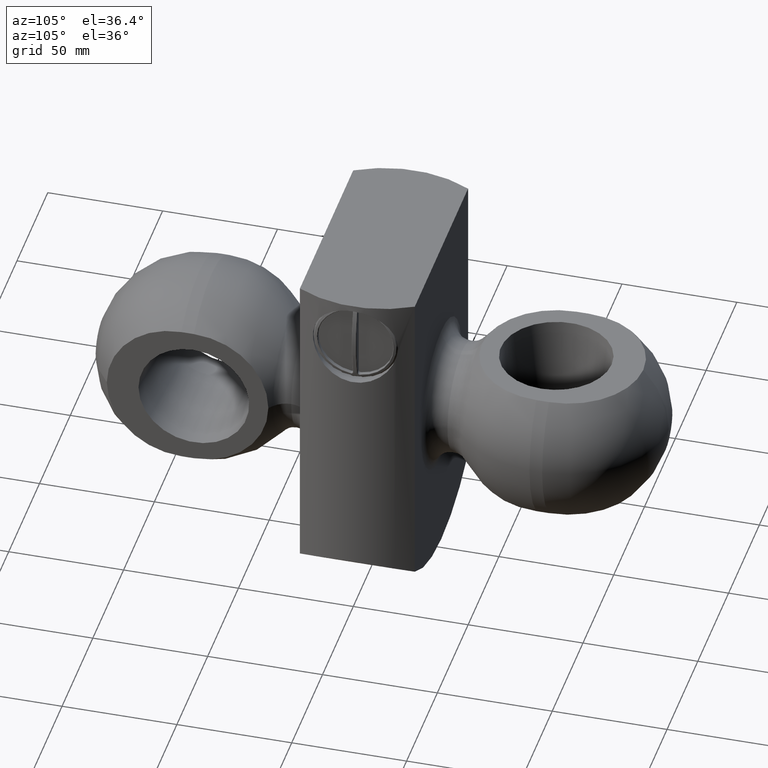
[diagram: clean part render]
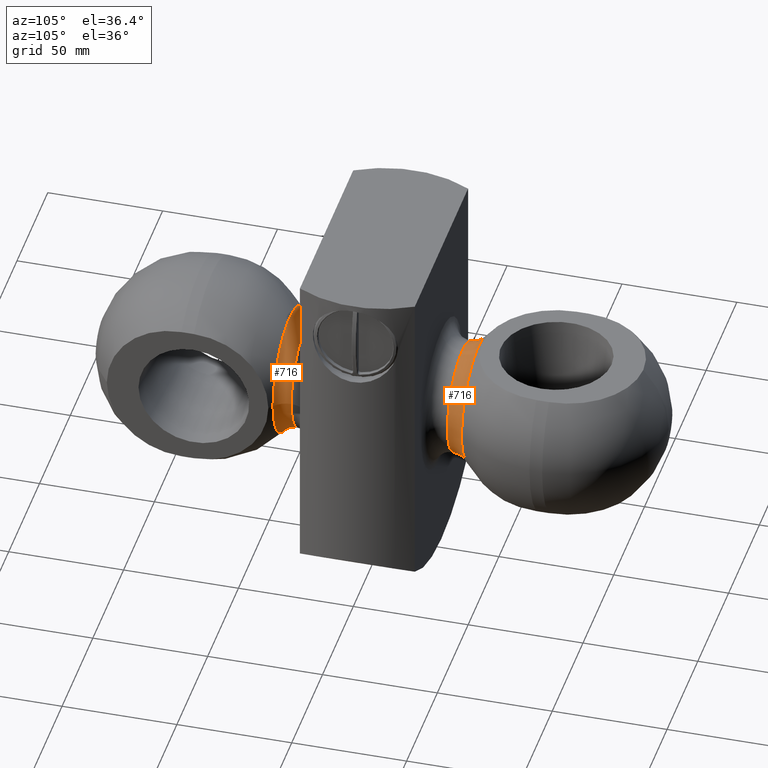
[diagram: same view with one multi-face feature highlighted, each face labeled with its STEP entity id]
A machine part, auxiliary view. The highlighted faces form ONE feature: a constant-radius fillet chain: 2 tangent blend faces with common blend radius 9 mm. The faces share edges in the B-rep.
Their STEP definitions:
[1] entity #716 (Torus):
#40=TOROIDAL_SURFACE('',#848,32.8,9.);
#108=FACE_OUTER_BOUND('',#156,.T.);
#156=EDGE_LOOP('',(#629,#630,#631,#632,#633,#634));
#276=CIRCLE('',#845,27.1771428571429);
#277=CIRCLE('',#846,27.1771428571429);
#279=CIRCLE('',#849,9.);
#280=CIRCLE('',#850,23.8);
#281=CIRCLE('',#851,23.8);
#349=VERTEX_POINT('',#1563);
#350=VERTEX_POINT('',#1565);
#351=VERTEX_POINT('',#1570);
#352=VERTEX_POINT('',#1572);
#445=EDGE_CURVE('',#350,#349,#276,.T.);
#446=EDGE_CURVE('',#349,#350,#277,.T.);
#448=EDGE_CURVE('',#349,#351,#279,.T.);
#449=EDGE_CURVE('',#351,#352,#280,.T.);
#450=EDGE_CURVE('',#352,#351,#281,.T.);
#629=ORIENTED_EDGE('',*,*,#445,.T.);
#630=ORIENTED_EDGE('',*,*,#448,.T.);
#631=ORIENTED_EDGE('',*,*,#449,.T.);
#632=ORIENTED_EDGE('',*,*,#450,.T.);
#633=ORIENTED_EDGE('',*,*,#448,.F.);
#634=ORIENTED_EDGE('',*,*,#446,.T.);
#716=ADVANCED_FACE('',(#108),#40,.F.);
#845=AXIS2_PLACEMENT_3D('',#1566,#1062,#1063);
#846=AXIS2_PLACEMENT_3D('',#1567,#1064,#1065);
#848=AXIS2_PLACEMENT_3D('',#1569,#1068,#1069);
#849=AXIS2_PLACEMENT_3D('',#1571,#1070,#1071);
#850=AXIS2_PLACEMENT_3D('',#1573,#1072,#1073);
#851=AXIS2_PLACEMENT_3D('',#1574,#1074,#1075);
#1062=DIRECTION('center_axis',(0.,-1.,0.));
#1063=DIRECTION('ref_axis',(1.,0.,0.));
#1064=DIRECTION('center_axis',(0.,-1.,0.));
#1065=DIRECTION('ref_axis',(1.,0.,0.));
#1068=DIRECTION('center_axis',(0.,-1.,0.));
#1069=DIRECTION('ref_axis',(0.,0.,-1.));
#1070=DIRECTION('center_axis',(-1.,0.,-1.22464679914735E-16));
#1071=DIRECTION('ref_axis',(-1.22464679914735E-16,0.,1.));
#1072=DIRECTION('center_axis',(0.,1.,0.));
#1073=DIRECTION('ref_axis',(1.,0.,0.));
#1074=DIRECTION('center_axis',(0.,1.,0.));
#1075=DIRECTION('ref_axis',(1.,0.,0.));
#1563=CARTESIAN_POINT('',(3.32824010099704E-15,41.0345336242464,27.1771428571429));
#1565=CARTESIAN_POINT('',(-27.1771428571429,41.0345336242464,-3.32824010099704E-15));
#1566=CARTESIAN_POINT('Origin',(0.,41.0345336242464,0.));
#1567=CARTESIAN_POINT('Origin',(0.,41.0345336242464,0.));
#1569=CARTESIAN_POINT('Origin',(0.,34.0071957534008,0.));
#1570=CARTESIAN_POINT('',(-2.9146593819707E-15,34.0071957534008,23.8));
#1571=CARTESIAN_POINT('Origin',(-4.01684150120332E-15,34.0071957534008,
32.8));
#1572=CARTESIAN_POINT('',(-23.8,34.0071957534008,2.9146593819707E-15));
#1573=CARTESIAN_POINT('Origin',(0.,34.0071957534008,0.));
#1574=CARTESIAN_POINT('Origin',(0.,34.0071957534008,0.));
[2] entity #716 (Torus):
#40=TOROIDAL_SURFACE('',#848,32.8,9.);
#108=FACE_OUTER_BOUND('',#156,.T.);
#156=EDGE_LOOP('',(#629,#630,#631,#632,#633,#634));
#276=CIRCLE('',#845,27.1771428571429);
#277=CIRCLE('',#846,27.1771428571429);
#279=CIRCLE('',#849,9.);
#280=CIRCLE('',#850,23.8);
#281=CIRCLE('',#851,23.8);
#349=VERTEX_POINT('',#1563);
#350=VERTEX_POINT('',#1565);
#351=VERTEX_POINT('',#1570);
#352=VERTEX_POINT('',#1572);
#445=EDGE_CURVE('',#350,#349,#276,.T.);
#446=EDGE_CURVE('',#349,#350,#277,.T.);
#448=EDGE_CURVE('',#349,#351,#279,.T.);
#449=EDGE_CURVE('',#351,#352,#280,.T.);
#450=EDGE_CURVE('',#352,#351,#281,.T.);
#629=ORIENTED_EDGE('',*,*,#445,.T.);
#630=ORIENTED_EDGE('',*,*,#448,.T.);
#631=ORIENTED_EDGE('',*,*,#449,.T.);
#632=ORIENTED_EDGE('',*,*,#450,.T.);
#633=ORIENTED_EDGE('',*,*,#448,.F.);
#634=ORIENTED_EDGE('',*,*,#446,.T.);
#716=ADVANCED_FACE('',(#108),#40,.F.);
#845=AXIS2_PLACEMENT_3D('',#1566,#1062,#1063);
#846=AXIS2_PLACEMENT_3D('',#1567,#1064,#1065);
#848=AXIS2_PLACEMENT_3D('',#1569,#1068,#1069);
#849=AXIS2_PLACEMENT_3D('',#1571,#1070,#1071);
#850=AXIS2_PLACEMENT_3D('',#1573,#1072,#1073);
#851=AXIS2_PLACEMENT_3D('',#1574,#1074,#1075);
#1062=DIRECTION('center_axis',(0.,-1.,0.));
#1063=DIRECTION('ref_axis',(1.,0.,0.));
#1064=DIRECTION('center_axis',(0.,-1.,0.));
#1065=DIRECTION('ref_axis',(1.,0.,0.));
#1068=DIRECTION('center_axis',(0.,-1.,0.));
#1069=DIRECTION('ref_axis',(0.,0.,-1.));
#1070=DIRECTION('center_axis',(-1.,0.,-1.22464679914735E-16));
#1071=DIRECTION('ref_axis',(-1.22464679914735E-16,0.,1.));
#1072=DIRECTION('center_axis',(0.,1.,0.));
#1073=DIRECTION('ref_axis',(1.,0.,0.));
#1074=DIRECTION('center_axis',(0.,1.,0.));
#1075=DIRECTION('ref_axis',(1.,0.,0.));
#1563=CARTESIAN_POINT('',(3.32824010099704E-15,41.0345336242464,27.1771428571429));
#1565=CARTESIAN_POINT('',(-27.1771428571429,41.0345336242464,-3.32824010099704E-15));
#1566=CARTESIAN_POINT('Origin',(0.,41.0345336242464,0.));
#1567=CARTESIAN_POINT('Origin',(0.,41.0345336242464,0.));
#1569=CARTESIAN_POINT('Origin',(0.,34.0071957534008,0.));
#1570=CARTESIAN_POINT('',(-2.9146593819707E-15,34.0071957534008,23.8));
#1571=CARTESIAN_POINT('Origin',(-4.01684150120332E-15,34.0071957534008,
32.8));
#1572=CARTESIAN_POINT('',(-23.8,34.0071957534008,2.9146593819707E-15));
#1573=CARTESIAN_POINT('Origin',(0.,34.0071957534008,0.));
#1574=CARTESIAN_POINT('Origin',(0.,34.0071957534008,0.));